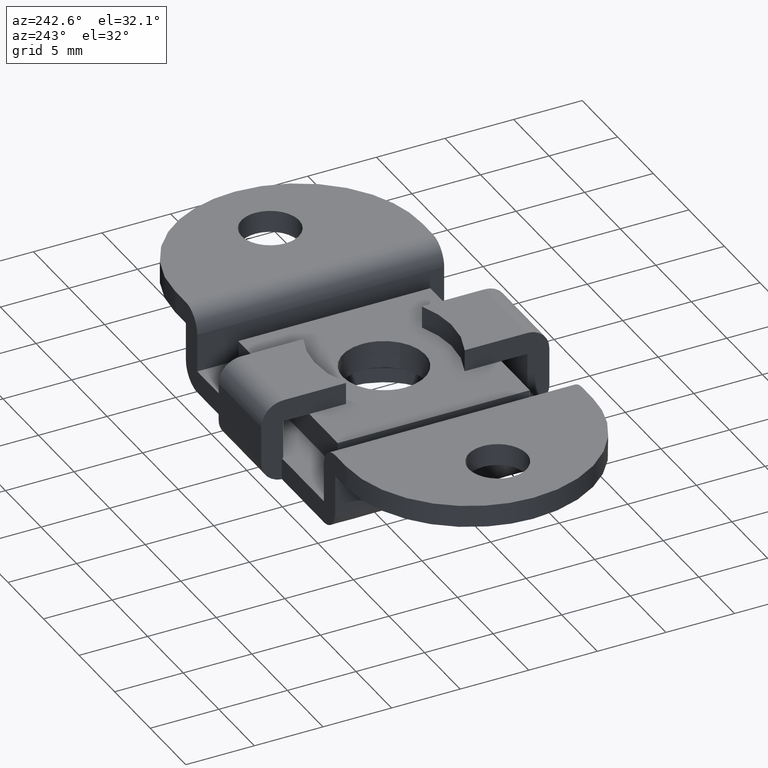
[diagram: clean part render]
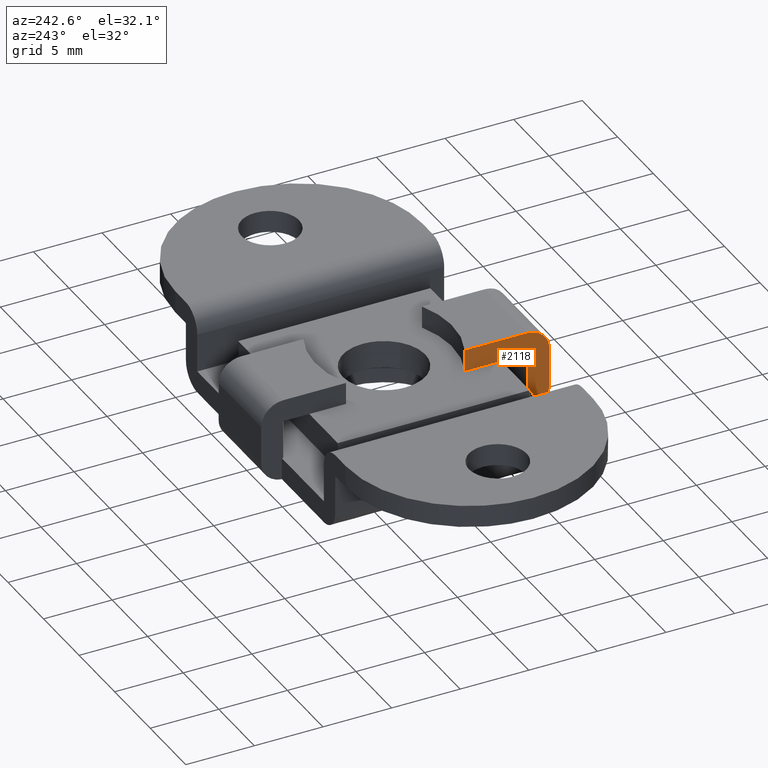
[diagram: same view with one face highlighted and labeled with its STEP entity id]
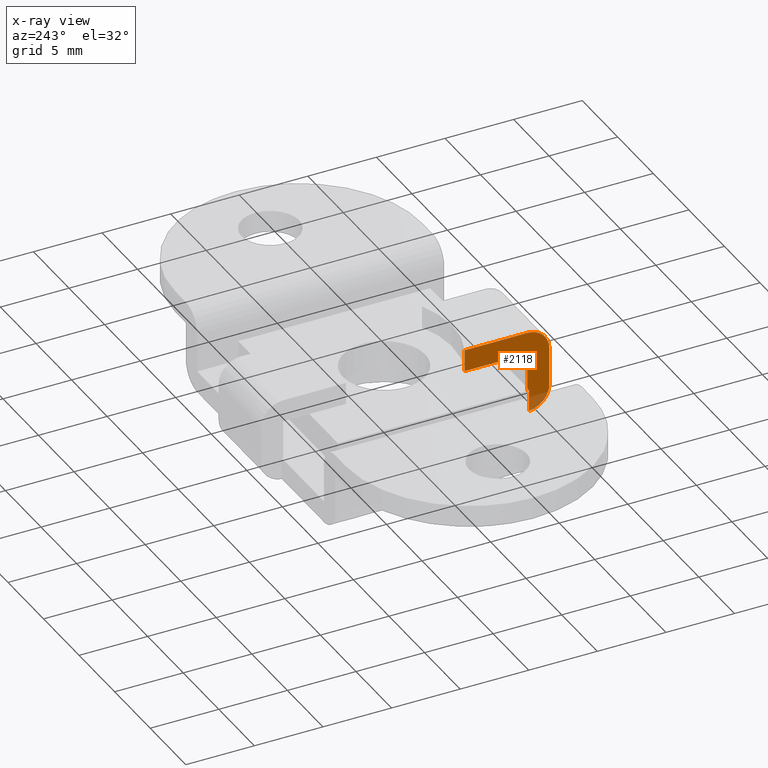
[diagram: x-ray of the same camera — body ghosted, the highlighted face saturated]
A machine part, auxiliary view. The second image highlights one B-rep face of the part: STEP entity #2118.
The next image is the same camera in x-ray: the body ghosted, the highlighted face saturated — about 7% of this face is hidden behind the body in this view.
In plain terms, the highlighted face is a freeform B-spline surface patch.
Its self-contained STEP definition (entity closure, byte-faithful):
#1219=CARTESIAN_POINT('',(-3.0,-8.900000000000000,6.0));
#1220=VERTEX_POINT('',#1219);
#1226=CARTESIAN_POINT('',(-3.0,-10.500000000000000,4.400000000000000));
#1227=VERTEX_POINT('',#1226);
#1228=CARTESIAN_POINT('',(-3.0,-10.500000000000000,4.400000000000000));
#1229=CARTESIAN_POINT('',(-3.000000000000012,-10.500043446595420,4.537448008034741));
#1230=CARTESIAN_POINT('',(-2.999999999999988,-10.466048443425080,4.799223930597955));
#1231=CARTESIAN_POINT('',(-3.000000000000015,-10.316716528351609,5.179518389582157));
#1232=CARTESIAN_POINT('',(-2.999999999999966,-10.096168113740790,5.484624771312991));
#1233=CARTESIAN_POINT('',(-3.000000000000036,-9.822251249439843,5.720866148966031));
#1234=CARTESIAN_POINT('',(-3.000000000000007,-9.546467730853333,5.874872306785294));
#1235=CARTESIAN_POINT('',(-2.999999999999988,-9.233782677575576,5.976034680111667));
#1236=CARTESIAN_POINT('',(-3.000000000000009,-9.017809364212690,6.000021426211969));
#1237=CARTESIAN_POINT('',(-3.0,-8.900000000000000,6.0));
#1238=B_SPLINE_CURVE_WITH_KNOTS('',3,(#1228,#1229,#1230,#1231,#1232,#1233,#1234,#1235,#1236,#1237),.UNSPECIFIED.,.F.,.U.,(4,1,1,1,1,1,1,4),(0.000000052748386,0.412332856851205,0.785404267438076,1.217384408848965,1.531529996118805,1.865332122103966,2.159866454701170,2.513289892604414),.UNSPECIFIED.);
#1239=EDGE_CURVE('',#1227,#1220,#1238,.T.);
#1473=CARTESIAN_POINT('',(-3.0,-9.0,0.003128057732868));
#1474=VERTEX_POINT('',#1473);
#1475=CARTESIAN_POINT('',(-3.0,-10.500000000000000,1.600000000000000));
#1476=VERTEX_POINT('',#1475);
#1477=CARTESIAN_POINT('',(-3.0,-9.0,0.003128057732868));
#1478=CARTESIAN_POINT('',(-3.000000000000004,-9.169366217325788,0.013636159918065));
#1479=CARTESIAN_POINT('',(-2.999999999999994,-9.485958071618361,0.085134420886629));
#1480=CARTESIAN_POINT('',(-3.000000000000002,-9.887618584097176,0.316184260251999));
#1481=CARTESIAN_POINT('',(-3.000000000000001,-10.141035741123700,0.573604389335166));
#1482=CARTESIAN_POINT('',(-3.000000000000004,-10.307488216389521,0.825930091970324));
#1483=CARTESIAN_POINT('',(-2.999999999999978,-10.452252684088720,1.141302626667724));
#1484=CARTESIAN_POINT('',(-3.000000000000048,-10.500106129849140,1.417737398982334));
#1485=CARTESIAN_POINT('',(-3.0,-10.500000000000000,1.600000000000000));
#1486=B_SPLINE_CURVE_WITH_KNOTS('',3,(#1477,#1478,#1479,#1480,#1481,#1482,#1483,#1484,#1485),.UNSPECIFIED.,.F.,.U.,(4,1,1,1,1,1,4),(0.000000046045087,0.509038484083934,0.961528215512784,1.376285600756810,1.583672058382214,1.866478408969506,2.413222864189758),.UNSPECIFIED.);
#1487=EDGE_CURVE('',#1474,#1476,#1486,.T.);
#1941=CARTESIAN_POINT('',(-3.0,-4.324556000000000,6.0));
#1942=VERTEX_POINT('',#1941);
#1964=CARTESIAN_POINT('',(-3.0,-4.324556000000000,4.400000000000000));
#1965=VERTEX_POINT('',#1964);
#1977=CARTESIAN_POINT('',(-3.0,-4.324556000000000,4.400000000000000));
#1978=CARTESIAN_POINT('',(-3.0,-4.324556000000000,6.0));
#1979=QUASI_UNIFORM_CURVE('',1,(#1977,#1978),.UNSPECIFIED.,.F.,.U.);
#1980=EDGE_CURVE('',#1965,#1942,#1979,.T.);
#1997=CARTESIAN_POINT('',(-3.0,-8.900000000000000,4.400000000000000));
#1998=VERTEX_POINT('',#1997);
#2004=CARTESIAN_POINT('',(-3.0,-8.900000000000000,4.400000000000000));
#2005=CARTESIAN_POINT('',(-3.0,-4.324556000000000,4.400000000000000));
#2006=QUASI_UNIFORM_CURVE('',1,(#2004,#2005),.UNSPECIFIED.,.F.,.U.);
#2007=EDGE_CURVE('',#1998,#1965,#2006,.T.);
#2024=CARTESIAN_POINT('',(-3.0,-10.500000000000000,4.400000000000000));
#2025=CARTESIAN_POINT('',(-3.0,-10.500000000000000,1.600000000000000));
#2026=QUASI_UNIFORM_CURVE('',1,(#2024,#2025),.UNSPECIFIED.,.F.,.U.);
#2027=EDGE_CURVE('',#1227,#1476,#2026,.T.);
#2038=CARTESIAN_POINT('',(-3.0,-8.900000000000000,6.0));
#2039=CARTESIAN_POINT('',(-3.0,-4.324556000000000,6.0));
#2040=QUASI_UNIFORM_CURVE('',1,(#2038,#2039),.UNSPECIFIED.,.F.,.U.);
#2041=EDGE_CURVE('',#1220,#1942,#2040,.T.);
#2086=CARTESIAN_POINT('',(-3.0,-10.808463415830801,6.299543741893143));
#2087=CARTESIAN_POINT('',(-3.0,-10.808463415830801,-0.296415845008913));
#2088=CARTESIAN_POINT('',(-3.0,-4.016092418530894,6.299543741893143));
#2089=CARTESIAN_POINT('',(-3.0,-4.016092418530894,-0.296415845008913));
#2090=B_SPLINE_SURFACE_WITH_KNOTS('',1,1,((#2086,#2088),(#2087,#2089)),.UNSPECIFIED.,.F.,.F.,.U.,(2,2),(2,2),(0.0,6.595959586902056),(0.0,6.792370997299901),.UNSPECIFIED.);
#2091=ORIENTED_EDGE('',*,*,#2027,.F.);
#2092=ORIENTED_EDGE('',*,*,#1239,.T.);
#2093=ORIENTED_EDGE('',*,*,#2041,.T.);
#2094=ORIENTED_EDGE('',*,*,#1980,.F.);
#2095=ORIENTED_EDGE('',*,*,#2007,.F.);
#2096=CARTESIAN_POINT('',(-3.0,-8.900000000000000,1.599999999999910));
#2097=VERTEX_POINT('',#2096);
#2098=CARTESIAN_POINT('',(-3.0,-8.900000000000000,4.400000000000000));
#2099=CARTESIAN_POINT('',(-3.0,-8.900000000000000,1.599999999999910));
#2100=QUASI_UNIFORM_CURVE('',1,(#2098,#2099),.UNSPECIFIED.,.F.,.U.);
#2101=EDGE_CURVE('',#1998,#2097,#2100,.T.);
#2102=ORIENTED_EDGE('',*,*,#2101,.T.);
#2103=CARTESIAN_POINT('',(-3.0,-9.0,1.599999999999910));
#2104=VERTEX_POINT('',#2103);
#2105=CARTESIAN_POINT('',(-3.0,-9.0,1.599999999999910));
#2106=CARTESIAN_POINT('',(-3.0,-8.900000000000000,1.599999999999910));
#2107=QUASI_UNIFORM_CURVE('',1,(#2105,#2106),.UNSPECIFIED.,.F.,.U.);
#2108=EDGE_CURVE('',#2104,#2097,#2107,.T.);
#2109=ORIENTED_EDGE('',*,*,#2108,.F.);
#2110=CARTESIAN_POINT('',(-3.0,-9.0,0.003128057732868));
#2111=CARTESIAN_POINT('',(-3.0,-9.0,1.599999999999910));
#2112=QUASI_UNIFORM_CURVE('',1,(#2110,#2111),.UNSPECIFIED.,.F.,.U.);
#2113=EDGE_CURVE('',#1474,#2104,#2112,.T.);
#2114=ORIENTED_EDGE('',*,*,#2113,.F.);
#2115=ORIENTED_EDGE('',*,*,#1487,.T.);
#2116=EDGE_LOOP('',(#2091,#2092,#2093,#2094,#2095,#2102,#2109,#2114,#2115));
#2117=FACE_OUTER_BOUND('',#2116,.T.);
#2118=ADVANCED_FACE('',(#2117),#2090,.F.);